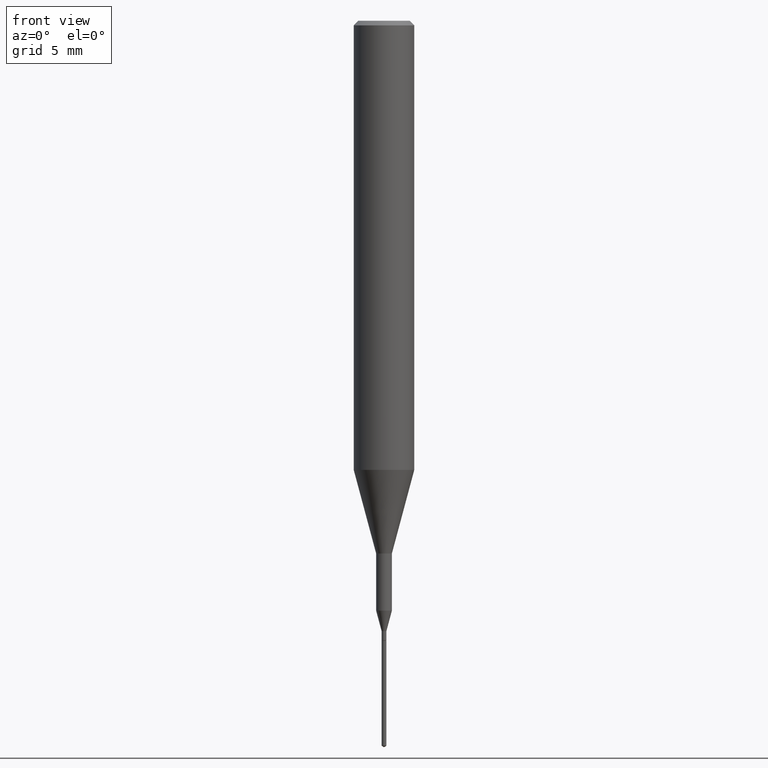
[diagram: clean part render]
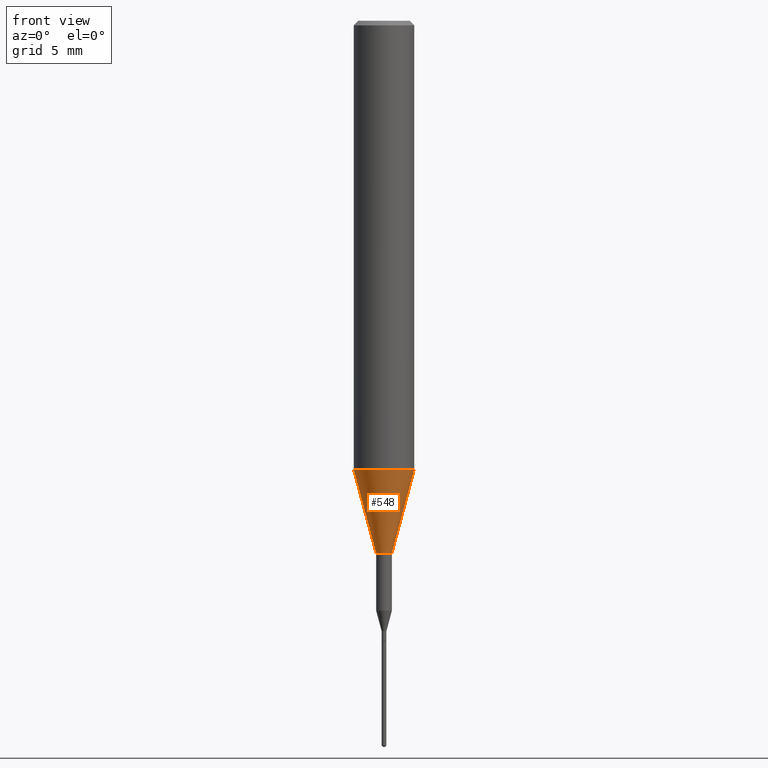
[diagram: same view with one face highlighted and labeled with its STEP entity id]
A machine part, front view. The second image highlights one B-rep face of the part: STEP entity #548.
In plain terms, the highlighted conical surface has half-angle 15 deg.
Its self-contained STEP definition (entity closure, byte-faithful):
#14 = CARTESIAN_POINT ( 'NONE',  ( 0.06250000000000011102, -3.674409299134196572E-15, -0.9273926501499395458 ) ) ;
#60 = DIRECTION ( 'NONE',  ( 0.2588190451025214611, 1.565188264969620982E-15, 0.9659258262890679791 ) ) ;
#70 = VERTEX_POINT ( 'NONE', #504 ) ;
#76 = VERTEX_POINT ( 'NONE', #286 ) ;
#85 = CARTESIAN_POINT ( 'NONE',  ( 2.267909797027042920E-29, -3.237974131778804114E-15, -0.9273926501499395458 ) ) ;
#104 = EDGE_CURVE ( 'NONE', #70, #171, #163, .T. ) ;
#107 = LINE ( 'NONE', #14, #386 ) ;
#130 = CARTESIAN_POINT ( 'NONE',  ( 2.690015686803650369E-29, -3.840629472727460101E-15, -1.100000000000000089 ) ) ;
#163 = CIRCLE ( 'NONE', #588, 0.06250000000000011102 ) ;
#169 = EDGE_CURVE ( 'NONE', #395, #171, #107, .T. ) ;
#171 = VERTEX_POINT ( 'NONE', #515 ) ;
#178 = EDGE_CURVE ( 'NONE', #76, #70, #472, .T. ) ;
#183 = DIRECTION ( 'NONE',  ( -2.445468806185136597E-29, 3.491481338843145583E-15, 1.000000000000000000 ) ) ;
#208 = ORIENTED_EDGE ( 'NONE', *, *, #104, .F. ) ;
#216 = ORIENTED_EDGE ( 'NONE', *, *, #178, .F. ) ;
#236 = DIRECTION ( 'NONE',  ( -2.445468806185136597E-29, 3.491481338843145583E-15, 1.000000000000000000 ) ) ;
#238 = EDGE_LOOP ( 'NONE', ( #216, #533, #587, #208 ) ) ;
#243 = CONICAL_SURFACE ( 'NONE', #572, 0.06250000000000011102, 0.2617993877991501850 ) ;
#286 = CARTESIAN_POINT ( 'NONE',  ( -0.01624999999999999709, -3.931235642409045081E-15, -1.100000000000000089 ) ) ;
#310 = AXIS2_PLACEMENT_3D ( 'NONE', #130, #183, #460 ) ;
#376 = CARTESIAN_POINT ( 'NONE',  ( -0.06250000000000011102, -2.793884921928740709E-15, -0.9273926501499395458 ) ) ;
#386 = VECTOR ( 'NONE', #60, 39.37007874015748143 ) ;
#395 = VERTEX_POINT ( 'NONE', #486 ) ;
#404 = FACE_OUTER_BOUND ( 'NONE', #238, .T. ) ;
#406 = DIRECTION ( 'NONE',  ( 1.000000000000000000, -6.982962677686265922E-15, 0.000000000000000000 ) ) ;
#418 = CARTESIAN_POINT ( 'NONE',  ( 2.267909797027042920E-29, -3.237974131778804114E-15, -0.9273926501499395458 ) ) ;
#455 = DIRECTION ( 'NONE',  ( 1.000000000000000000, -6.982962677686265922E-15, 0.000000000000000000 ) ) ;
#460 = DIRECTION ( 'NONE',  ( 1.000000000000000000, -6.982962677686259611E-15, 0.000000000000000000 ) ) ;
#461 = EDGE_CURVE ( 'NONE', #76, #395, #529, .T. ) ;
#472 = LINE ( 'NONE', #376, #488 ) ;
#486 = CARTESIAN_POINT ( 'NONE',  ( 0.01624999999999999709, -3.954102616239861778E-15, -1.100000000000000089 ) ) ;
#488 = VECTOR ( 'NONE', #562, 39.37007874015748143 ) ;
#498 = DIRECTION ( 'NONE',  ( -2.445468806185136597E-29, 3.491481338843145583E-15, 1.000000000000000000 ) ) ;
#504 = CARTESIAN_POINT ( 'NONE',  ( -0.06250000000000011102, -2.793884921928740709E-15, -0.9273926501499395458 ) ) ;
#515 = CARTESIAN_POINT ( 'NONE',  ( 0.06250000000000011102, -3.674409299134196572E-15, -0.9273926501499395458 ) ) ;
#529 = CIRCLE ( 'NONE', #310, 0.01624999999999999709 ) ;
#533 = ORIENTED_EDGE ( 'NONE', *, *, #461, .T. ) ;
#548 = ADVANCED_FACE ( 'NONE', ( #404 ), #243, .T. ) ;
#562 = DIRECTION ( 'NONE',  ( -0.2588190451025214611, 5.211531920934550253E-15, 0.9659258262890679791 ) ) ;
#572 = AXIS2_PLACEMENT_3D ( 'NONE', #85, #236, #406 ) ;
#587 = ORIENTED_EDGE ( 'NONE', *, *, #169, .T. ) ;
#588 = AXIS2_PLACEMENT_3D ( 'NONE', #418, #498, #455 ) ;